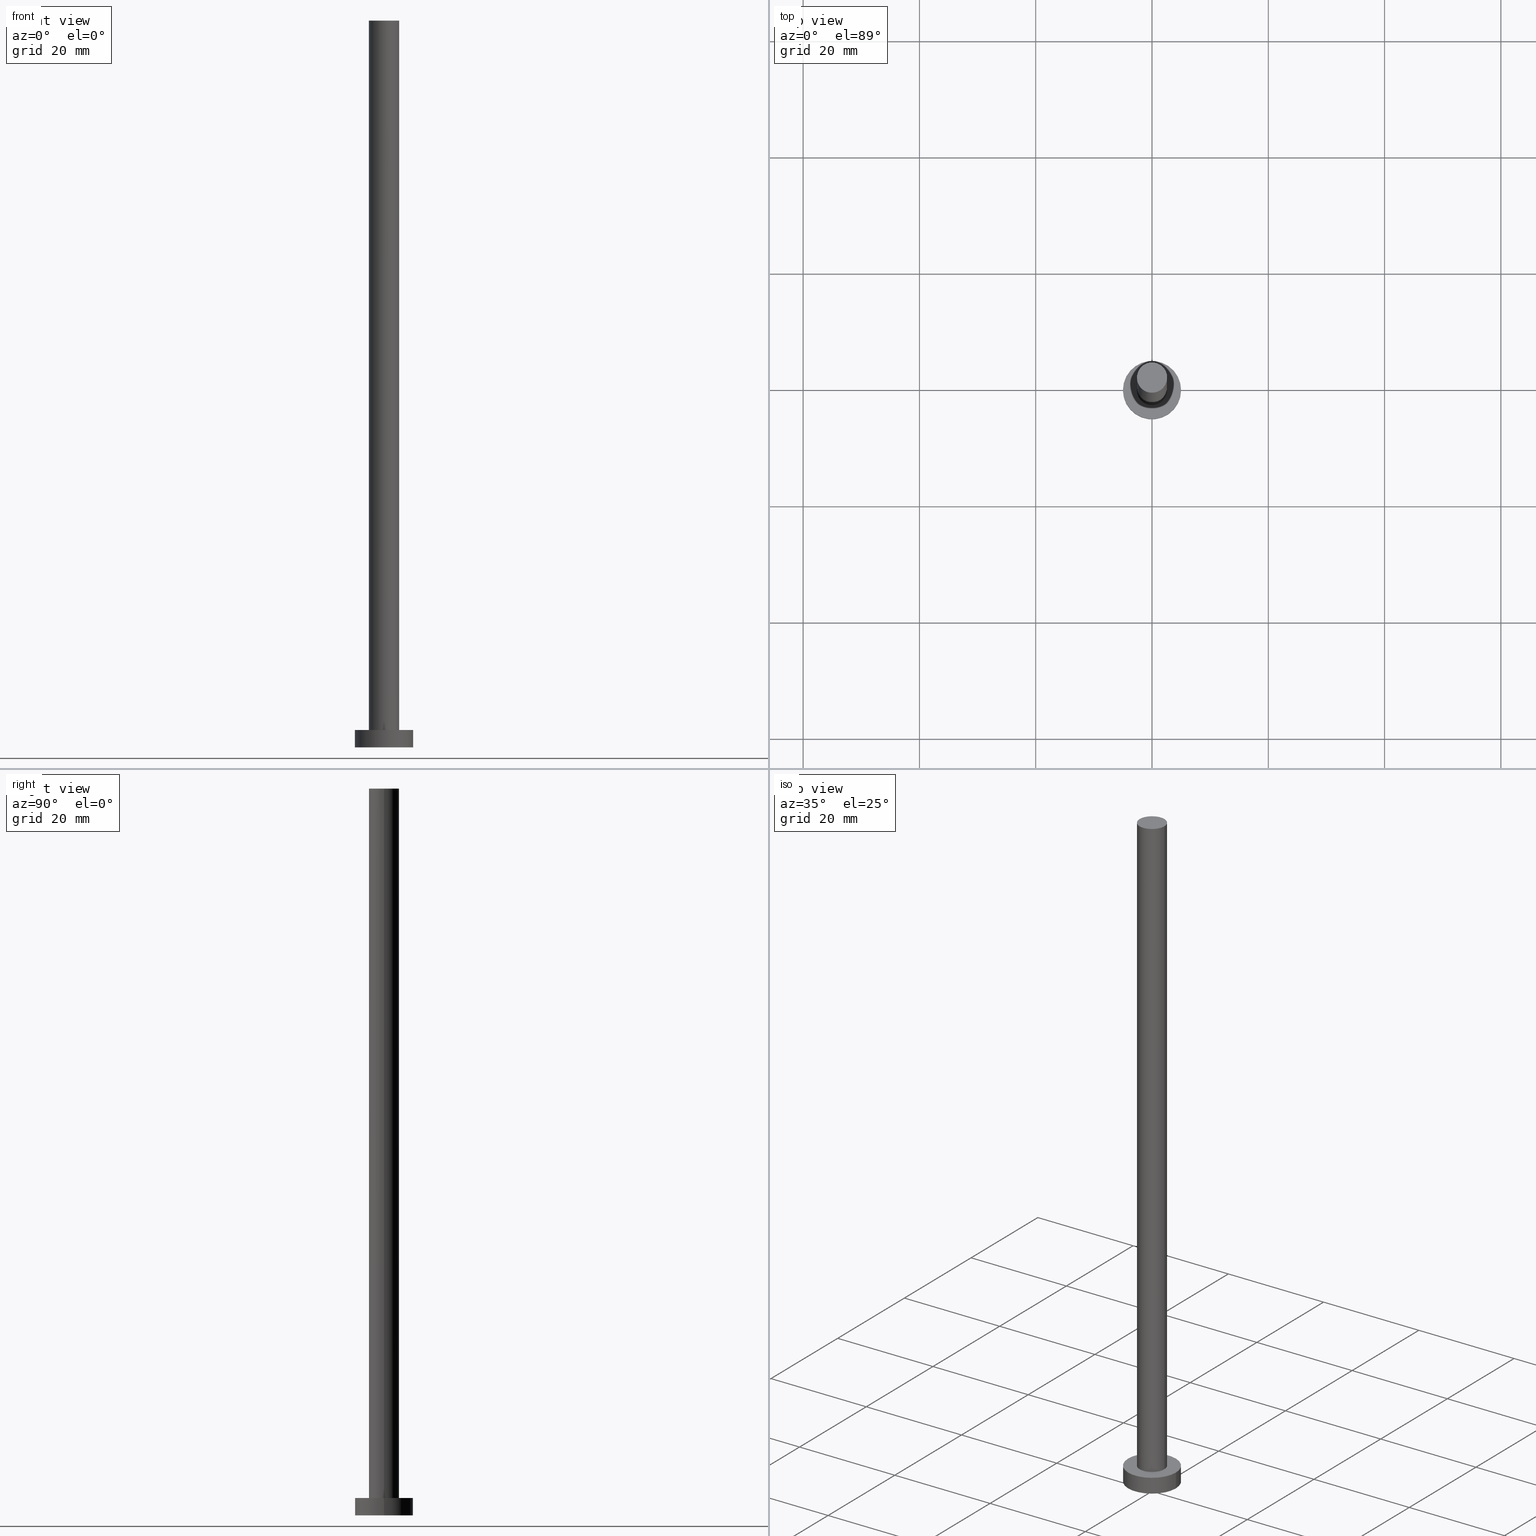
[diagram: canonical four-view strip — front | top / right | iso, engineering-drawing reading convention]
A machine part, canonical four-view strip (front | top / right | iso — engineering-drawing reading convention). The complete STEP part file that produces these views, byte-faithful:
ISO-10303-21;
HEADER;
FILE_DESCRIPTION (( 'STEP AP203' ),
    '1' );
FILE_NAME ('be71.STEP',
    '2023-02-12T11:50:10',
    ( '' ),
    ( '' ),
    'SwSTEP 2.0',
    'SolidWorks 2019',
    '' );
FILE_SCHEMA (( 'CONFIG_CONTROL_DESIGN' ));
ENDSEC;

DATA;
#1 = COORDINATED_UNIVERSAL_TIME_OFFSET ( 1, 0, .AHEAD. ) ;
#2 = CC_DESIGN_PERSON_AND_ORGANIZATION_ASSIGNMENT ( #33, #235, ( #50 ) ) ;
#3 = DATE_AND_TIME ( #150, #176 ) ;
#4 = DIRECTION ( 'NONE',  ( -1.000000000000000000, 0.000000000000000000, 0.000000000000000000 ) ) ;
#5 = PERSON_AND_ORGANIZATION_ROLE ( 'creator' ) ;
#6 = SECURITY_CLASSIFICATION ( '', '', #223 ) ;
#7 = ORIENTED_EDGE ( 'NONE', *, *, #31, .T. ) ;
#8 = APPROVAL_ROLE ( '' ) ;
#9 = DIRECTION ( 'NONE',  ( 0.000000000000000000, 0.000000000000000000, 1.000000000000000000 ) ) ;
#10 = ORIENTED_EDGE ( 'NONE', *, *, #112, .F. ) ;
#11 = CIRCLE ( 'NONE', #184, 5.000000000000000000 ) ;
#12 = AXIS2_PLACEMENT_3D ( 'NONE', #76, #155, #241 ) ;
#13 = ORIENTED_EDGE ( 'NONE', *, *, #125, .F. ) ;
#14 = VERTEX_POINT ( 'NONE', #81 ) ;
#15 = EDGE_LOOP ( 'NONE', ( #140, #178 ) ) ;
#16 = CC_DESIGN_APPROVAL ( #226, ( #52 ) ) ;
#17 = VECTOR ( 'NONE', #118, 1000.000000000000000 ) ;
#18 = APPROVAL_PERSON_ORGANIZATION ( #180, #226, #8 ) ;
#19 = CYLINDRICAL_SURFACE ( 'NONE', #249, 5.000000000000000000 ) ;
#20 = CALENDAR_DATE ( 2023, 12, 2 ) ;
#21 = PRODUCT_RELATED_PRODUCT_CATEGORY ( 'detail', '', ( #50 ) ) ;
#22 = DIRECTION ( 'NONE',  ( 0.000000000000000000, 0.000000000000000000, 1.000000000000000000 ) ) ;
#23 = VERTEX_POINT ( 'NONE', #224 ) ;
#24 = VERTEX_POINT ( 'NONE', #225 ) ;
#25 = CYLINDRICAL_SURFACE ( 'NONE', #12, 2.600000000000000089 ) ;
#26 = MANIFOLD_SOLID_BREP ( 'P�idat vysunut�m3', #188 ) ;
#27 = EDGE_LOOP ( 'NONE', ( #13, #57 ) ) ;
#28 = EDGE_CURVE ( 'NONE', #24, #14, #30, .T. ) ;
#29 = ORIENTED_EDGE ( 'NONE', *, *, #233, .F. ) ;
#30 = LINE ( 'NONE', #122, #208 ) ;
#31 = EDGE_CURVE ( 'NONE', #221, #209, #177, .T. ) ;
#32 = AXIS2_PLACEMENT_3D ( 'NONE', #206, #250, #67 ) ;
#33 = PERSON_AND_ORGANIZATION ( #189, #229 ) ;
#34 = ADVANCED_FACE ( 'NONE', ( #231 ), #119, .T. ) ;
#35 = DIRECTION ( 'NONE',  ( 1.000000000000000000, 0.000000000000000000, 0.000000000000000000 ) ) ;
#36 = ORIENTED_EDGE ( 'NONE', *, *, #94, .F. ) ;
#37 = ADVANCED_BREP_SHAPE_REPRESENTATION ( 'be71', ( #26, #151 ), #114 ) ;
#38 = PERSON_AND_ORGANIZATION ( #189, #229 ) ;
#39 = CALENDAR_DATE ( 2023, 12, 2 ) ;
#40 = DIRECTION ( 'NONE',  ( 1.000000000000000000, 0.000000000000000000, 0.000000000000000000 ) ) ;
#41 = APPROVAL_STATUS ( 'not_yet_approved' ) ;
#42 = EDGE_CURVE ( 'NONE', #107, #23, #162, .T. ) ;
#43 = DIRECTION ( 'NONE',  ( 0.000000000000000000, 0.000000000000000000, 1.000000000000000000 ) ) ;
#44 = AXIS2_PLACEMENT_3D ( 'NONE', #74, #175, #40 ) ;
#45 = PLANE ( 'NONE',  #202 ) ;
#46 = DIRECTION ( 'NONE',  ( 1.000000000000000000, 0.000000000000000000, 0.000000000000000000 ) ) ;
#47 = LINE ( 'NONE', #133, #17 ) ;
#48 = ORIENTED_EDGE ( 'NONE', *, *, #100, .T. ) ;
#49 = AXIS2_PLACEMENT_3D ( 'NONE', #157, #43, #46 ) ;
#50 = PRODUCT ( 'be71', 'be71', '', ( #234 ) ) ;
#51 = DIRECTION ( 'NONE',  ( 1.000000000000000000, 0.000000000000000000, 0.000000000000000000 ) ) ;
#52 = PRODUCT_DEFINITION_FORMATION_WITH_SPECIFIED_SOURCE ( 'LIBOVOLN�', '', #50, .NOT_KNOWN. ) ;
#53 = APPLICATION_PROTOCOL_DEFINITION ( 'international standard', 'config_control_design', 1994, #243 ) ;
#54 = ADVANCED_FACE ( 'NONE', ( #65 ), #251, .T. ) ;
#55 = CARTESIAN_POINT ( 'NONE',  ( 0.000000000000000000, 0.000000000000000000, 125.0000000000000000 ) ) ;
#56 = CIRCLE ( 'NONE', #44, 5.000000000000000000 ) ;
#57 = ORIENTED_EDGE ( 'NONE', *, *, #194, .F. ) ;
#58 = DIRECTION ( 'NONE',  ( 1.000000000000000000, 0.000000000000000000, 0.000000000000000000 ) ) ;
#59 = PERSON_AND_ORGANIZATION ( #189, #229 ) ;
#60 = FACE_OUTER_BOUND ( 'NONE', #93, .T. ) ;
#61 = COORDINATED_UNIVERSAL_TIME_OFFSET ( 1, 0, .AHEAD. ) ;
#62 = ADVANCED_FACE ( 'NONE', ( #166 ), #253, .F. ) ;
#63 = DIRECTION ( 'NONE',  ( -1.000000000000000000, 0.000000000000000000, 0.000000000000000000 ) ) ;
#64 = APPROVAL_PERSON_ORGANIZATION ( #170, #210, #104 ) ;
#65 = FACE_OUTER_BOUND ( 'NONE', #15, .T. ) ;
#66 = EDGE_CURVE ( 'NONE', #132, #24, #148, .T. ) ;
#67 = DIRECTION ( 'NONE',  ( 1.000000000000000000, 0.000000000000000000, 0.000000000000000000 ) ) ;
#68 = CARTESIAN_POINT ( 'NONE',  ( 0.000000000000000000, 0.000000000000000000, 0.000000000000000000 ) ) ;
#69 = CARTESIAN_POINT ( 'NONE',  ( 0.000000000000000000, 0.000000000000000000, 3.000000000000000000 ) ) ;
#70 = APPROVAL_PERSON_ORGANIZATION ( #242, #130, #75 ) ;
#71 = AXIS2_PLACEMENT_3D ( 'NONE', #182, #143, #98 ) ;
#72 = CC_DESIGN_PERSON_AND_ORGANIZATION_ASSIGNMENT ( #59, #77, ( #6 ) ) ;
#73 = CC_DESIGN_APPROVAL ( #130, ( #6 ) ) ;
#74 = CARTESIAN_POINT ( 'NONE',  ( 0.000000000000000000, 0.000000000000000000, 0.000000000000000000 ) ) ;
#75 = APPROVAL_ROLE ( '' ) ;
#76 = CARTESIAN_POINT ( 'NONE',  ( 0.000000000000000000, 0.000000000000000000, 125.0000000000000000 ) ) ;
#77 = PERSON_AND_ORGANIZATION_ROLE ( 'classification_officer' ) ;
#78 = ORIENTED_EDGE ( 'NONE', *, *, #112, .T. ) ;
#79 = ORIENTED_EDGE ( 'NONE', *, *, #100, .F. ) ;
#80 = AXIS2_PLACEMENT_3D ( 'NONE', #228, #95, #51 ) ;
#81 = CARTESIAN_POINT ( 'NONE',  ( 5.000000000000000000, 6.123233995736766282E-16, 0.000000000000000000 ) ) ;
#82 = DIRECTION ( 'NONE',  ( -0.000000000000000000, -0.000000000000000000, -1.000000000000000000 ) ) ;
#83 = DIRECTION ( 'NONE',  ( 0.000000000000000000, 0.000000000000000000, 1.000000000000000000 ) ) ;
#84 =( NAMED_UNIT ( * ) SI_UNIT ( $, .STERADIAN. ) SOLID_ANGLE_UNIT ( ) );
#85 = AXIS2_PLACEMENT_3D ( 'NONE', #144, #121, #63 ) ;
#86 = CARTESIAN_POINT ( 'NONE',  ( -5.000000000000000000, 0.000000000000000000, 3.000000000000000000 ) ) ;
#87 = LINE ( 'NONE', #173, #215 ) ;
#88 = PERSON_AND_ORGANIZATION ( #189, #229 ) ;
#89 = FACE_OUTER_BOUND ( 'NONE', #115, .T. ) ;
#90 = AXIS2_PLACEMENT_3D ( 'NONE', #149, #22, #58 ) ;
#91 = ORIENTED_EDGE ( 'NONE', *, *, #233, .T. ) ;
#92 = CIRCLE ( 'NONE', #90, 5.000000000000000000 ) ;
#93 = EDGE_LOOP ( 'NONE', ( #245, #227, #48, #185 ) ) ;
#94 = EDGE_CURVE ( 'NONE', #24, #132, #11, .T. ) ;
#95 = DIRECTION ( 'NONE',  ( 0.000000000000000000, 0.000000000000000000, 1.000000000000000000 ) ) ;
#96 = ORIENTED_EDGE ( 'NONE', *, *, #42, .F. ) ;
#97 = APPLICATION_PROTOCOL_DEFINITION ( 'international standard', 'config_control_design', 1994, #127 ) ;
#98 = DIRECTION ( 'NONE',  ( 1.000000000000000000, 0.000000000000000000, -0.000000000000000000 ) ) ;
#99 = DIRECTION ( 'NONE',  ( 1.000000000000000000, 0.000000000000000000, -0.000000000000000000 ) ) ;
#100 = EDGE_CURVE ( 'NONE', #132, #195, #129, .T. ) ;
#101 =( LENGTH_UNIT ( ) NAMED_UNIT ( * ) SI_UNIT ( .MILLI., .METRE. ) );
#102 = CARTESIAN_POINT ( 'NONE',  ( -5.000000000000000000, 0.000000000000000000, 3.000000000000000000 ) ) ;
#103 = CC_DESIGN_PERSON_AND_ORGANIZATION_ASSIGNMENT ( #38, #193, ( #200 ) ) ;
#104 = APPROVAL_ROLE ( '' ) ;
#105 = DIRECTION ( 'NONE',  ( 1.000000000000000000, 0.000000000000000000, 0.000000000000000000 ) ) ;
#106 = CARTESIAN_POINT ( 'NONE',  ( 0.000000000000000000, 0.000000000000000000, 125.0000000000000000 ) ) ;
#107 = VERTEX_POINT ( 'NONE', #161 ) ;
#108 = AXIS2_PLACEMENT_3D ( 'NONE', #68, #145, #99 ) ;
#109 = CARTESIAN_POINT ( 'NONE',  ( -5.000000000000000000, 0.000000000000000000, 0.000000000000000000 ) ) ;
#110 = CC_DESIGN_SECURITY_CLASSIFICATION ( #6, ( #52 ) ) ;
#111 = APPROVAL_DATE_TIME ( #134, #226 ) ;
#112 = EDGE_CURVE ( 'NONE', #107, #221, #87, .T. ) ;
#113 = ORIENTED_EDGE ( 'NONE', *, *, #194, .T. ) ;
#114 =( GEOMETRIC_REPRESENTATION_CONTEXT ( 3 ) GLOBAL_UNCERTAINTY_ASSIGNED_CONTEXT ( ( #147 ) ) GLOBAL_UNIT_ASSIGNED_CONTEXT ( ( #101, #124, #84 ) ) REPRESENTATION_CONTEXT ( 'NONE', 'WORKASPACE' ) );
#115 = EDGE_LOOP ( 'NONE', ( #164, #96, #78, #7 ) ) ;
#116 = CC_DESIGN_PERSON_AND_ORGANIZATION_ASSIGNMENT ( #117, #222, ( #52 ) ) ;
#117 = PERSON_AND_ORGANIZATION ( #189, #229 ) ;
#118 = DIRECTION ( 'NONE',  ( -0.000000000000000000, -0.000000000000000000, -1.000000000000000000 ) ) ;
#119 = CYLINDRICAL_SURFACE ( 'NONE', #85, 5.000000000000000000 ) ;
#120 = CARTESIAN_POINT ( 'NONE',  ( 0.000000000000000000, 0.000000000000000000, 3.000000000000000000 ) ) ;
#121 = DIRECTION ( 'NONE',  ( -0.000000000000000000, -0.000000000000000000, -1.000000000000000000 ) ) ;
#122 = CARTESIAN_POINT ( 'NONE',  ( 5.000000000000000000, 6.123233995736766282E-16, 3.000000000000000000 ) ) ;
#123 = LOCAL_TIME ( 12, 50, 10.00000000000000000, #152 ) ;
#124 =( NAMED_UNIT ( * ) PLANE_ANGLE_UNIT ( ) SI_UNIT ( $, .RADIAN. ) );
#125 = EDGE_CURVE ( 'NONE', #195, #14, #92, .T. ) ;
#126 = ORIENTED_EDGE ( 'NONE', *, *, #153, .T. ) ;
#127 = APPLICATION_CONTEXT ( 'configuration controlled 3d designs of mechanical parts and assemblies' ) ;
#128 = DIRECTION ( 'NONE',  ( 1.000000000000000000, 0.000000000000000000, 0.000000000000000000 ) ) ;
#129 = LINE ( 'NONE', #102, #191 ) ;
#130 = APPROVAL ( #41, 'NEUR�EN�' ) ;
#131 = FACE_BOUND ( 'NONE', #136, .T. ) ;
#132 = VERTEX_POINT ( 'NONE', #86 ) ;
#133 = CARTESIAN_POINT ( 'NONE',  ( 2.600000000000000089, 3.184081677783117698E-16, 125.0000000000000000 ) ) ;
#134 = DATE_AND_TIME ( #20, #214 ) ;
#135 = DIRECTION ( 'NONE',  ( -0.000000000000000000, -0.000000000000000000, -1.000000000000000000 ) ) ;
#136 = EDGE_LOOP ( 'NONE', ( #204, #29 ) ) ;
#137 = CC_DESIGN_PERSON_AND_ORGANIZATION_ASSIGNMENT ( #88, #5, ( #52 ) ) ;
#138 = COORDINATED_UNIVERSAL_TIME_OFFSET ( 1, 0, .AHEAD. ) ;
#139 = DATE_AND_TIME ( #246, #190 ) ;
#140 = ORIENTED_EDGE ( 'NONE', *, *, #42, .T. ) ;
#141 = CARTESIAN_POINT ( 'NONE',  ( 0.000000000000000000, 0.000000000000000000, 3.000000000000000000 ) ) ;
#142 = DIRECTION ( 'NONE',  ( 0.000000000000000000, 0.000000000000000000, 1.000000000000000000 ) ) ;
#143 = DIRECTION ( 'NONE',  ( 0.000000000000000000, 0.000000000000000000, 1.000000000000000000 ) ) ;
#144 = CARTESIAN_POINT ( 'NONE',  ( 0.000000000000000000, 0.000000000000000000, 3.000000000000000000 ) ) ;
#145 = DIRECTION ( 'NONE',  ( 0.000000000000000000, 0.000000000000000000, 1.000000000000000000 ) ) ;
#146 = AXIS2_PLACEMENT_3D ( 'NONE', #55, #142, #219 ) ;
#147 = UNCERTAINTY_MEASURE_WITH_UNIT (LENGTH_MEASURE( 1.000000000000000082E-05 ), #101, 'distance_accuracy_value', 'NONE');
#148 = CIRCLE ( 'NONE', #49, 5.000000000000000000 ) ;
#149 = CARTESIAN_POINT ( 'NONE',  ( 0.000000000000000000, 0.000000000000000000, 0.000000000000000000 ) ) ;
#150 = CALENDAR_DATE ( 2023, 12, 2 ) ;
#151 = AXIS2_PLACEMENT_3D ( 'NONE', #254, #255, #105 ) ;
#152 = COORDINATED_UNIVERSAL_TIME_OFFSET ( 1, 0, .AHEAD. ) ;
#153 = EDGE_CURVE ( 'NONE', #23, #209, #47, .T. ) ;
#154 = COORDINATED_UNIVERSAL_TIME_OFFSET ( 1, 0, .AHEAD. ) ;
#155 = DIRECTION ( 'NONE',  ( -0.000000000000000000, -0.000000000000000000, -1.000000000000000000 ) ) ;
#156 = DATE_TIME_ROLE ( 'creation_date' ) ;
#157 = CARTESIAN_POINT ( 'NONE',  ( 0.000000000000000000, 0.000000000000000000, 3.000000000000000000 ) ) ;
#158 = DATE_AND_TIME ( #212, #123 ) ;
#159 = ADVANCED_FACE ( 'NONE', ( #60 ), #19, .T. ) ;
#160 = EDGE_LOOP ( 'NONE', ( #179, #247 ) ) ;
#161 = CARTESIAN_POINT ( 'NONE',  ( -2.600000000000000089, 0.000000000000000000, 125.0000000000000000 ) ) ;
#162 = CIRCLE ( 'NONE', #80, 2.600000000000000089 ) ;
#163 = ORIENTED_EDGE ( 'NONE', *, *, #28, .T. ) ;
#164 = ORIENTED_EDGE ( 'NONE', *, *, #153, .F. ) ;
#165 = ADVANCED_FACE ( 'NONE', ( #236 ), #220, .T. ) ;
#166 = FACE_OUTER_BOUND ( 'NONE', #27, .T. ) ;
#167 = CIRCLE ( 'NONE', #146, 2.600000000000000089 ) ;
#168 = CC_DESIGN_DATE_AND_TIME_ASSIGNMENT ( #158, #156, ( #200 ) ) ;
#169 = DIRECTION ( 'NONE',  ( 1.000000000000000000, 0.000000000000000000, -0.000000000000000000 ) ) ;
#170 = PERSON_AND_ORGANIZATION ( #189, #229 ) ;
#171 = CIRCLE ( 'NONE', #237, 2.600000000000000089 ) ;
#172 = CC_DESIGN_DATE_AND_TIME_ASSIGNMENT ( #196, #174, ( #6 ) ) ;
#173 = CARTESIAN_POINT ( 'NONE',  ( -2.600000000000000089, 0.000000000000000000, 125.0000000000000000 ) ) ;
#174 = DATE_TIME_ROLE ( 'classification_date' ) ;
#175 = DIRECTION ( 'NONE',  ( 0.000000000000000000, 0.000000000000000000, 1.000000000000000000 ) ) ;
#176 = LOCAL_TIME ( 12, 50, 10.00000000000000000, #1 ) ;
#177 = CIRCLE ( 'NONE', #32, 2.600000000000000089 ) ;
#178 = ORIENTED_EDGE ( 'NONE', *, *, #183, .T. ) ;
#179 = ORIENTED_EDGE ( 'NONE', *, *, #66, .T. ) ;
#180 = PERSON_AND_ORGANIZATION ( #189, #229 ) ;
#181 = CARTESIAN_POINT ( 'NONE',  ( 0.000000000000000000, 0.000000000000000000, 3.000000000000000000 ) ) ;
#182 = CARTESIAN_POINT ( 'NONE',  ( 0.000000000000000000, 0.000000000000000000, 125.0000000000000000 ) ) ;
#183 = EDGE_CURVE ( 'NONE', #23, #107, #167, .T. ) ;
#184 = AXIS2_PLACEMENT_3D ( 'NONE', #141, #207, #35 ) ;
#185 = ORIENTED_EDGE ( 'NONE', *, *, #125, .T. ) ;
#186 = EDGE_LOOP ( 'NONE', ( #187, #126, #91, #10 ) ) ;
#187 = ORIENTED_EDGE ( 'NONE', *, *, #183, .F. ) ;
#188 = CLOSED_SHELL ( 'NONE', ( #165, #34, #159, #217, #62, #213, #54 ) ) ;
#189 = PERSON ( 'NEUR�EN�', 'NEUR�EN�', 'NEUR�EN�', ('NEUR�EN�'), ('NEUR�EN�'), ('NEUR�EN�') ) ;
#190 = LOCAL_TIME ( 12, 50, 10.00000000000000000, #154 ) ;
#191 = VECTOR ( 'NONE', #238, 1000.000000000000000 ) ;
#192 = APPROVAL_STATUS ( 'not_yet_approved' ) ;
#193 = PERSON_AND_ORGANIZATION_ROLE ( 'creator' ) ;
#194 = EDGE_CURVE ( 'NONE', #14, #195, #56, .T. ) ;
#195 = VERTEX_POINT ( 'NONE', #109 ) ;
#196 = DATE_AND_TIME ( #39, #211 ) ;
#197 = AXIS2_PLACEMENT_3D ( 'NONE', #106, #239, #4 ) ;
#198 = CARTESIAN_POINT ( 'NONE',  ( 2.600000000000000089, 3.184081677783117698E-16, 3.000000000000000000 ) ) ;
#199 = APPROVAL_DATE_TIME ( #139, #130 ) ;
#200 = PRODUCT_DEFINITION ( 'NEZN�M�', '', #52, #230 ) ;
#201 = EDGE_LOOP ( 'NONE', ( #36, #163, #113, #79 ) ) ;
#202 = AXIS2_PLACEMENT_3D ( 'NONE', #181, #9, #169 ) ;
#203 = PRODUCT_DEFINITION_SHAPE ( 'NONE', 'NONE',  #200 ) ;
#204 = ORIENTED_EDGE ( 'NONE', *, *, #31, .F. ) ;
#205 = DIRECTION ( 'NONE',  ( -1.000000000000000000, 0.000000000000000000, 0.000000000000000000 ) ) ;
#206 = CARTESIAN_POINT ( 'NONE',  ( 0.000000000000000000, 0.000000000000000000, 3.000000000000000000 ) ) ;
#207 = DIRECTION ( 'NONE',  ( 0.000000000000000000, 0.000000000000000000, 1.000000000000000000 ) ) ;
#208 = VECTOR ( 'NONE', #82, 1000.000000000000000 ) ;
#209 = VERTEX_POINT ( 'NONE', #198 ) ;
#210 = APPROVAL ( #192, 'NEUR�EN�' ) ;
#211 = LOCAL_TIME ( 12, 50, 10.00000000000000000, #61 ) ;
#212 = CALENDAR_DATE ( 2023, 12, 2 ) ;
#213 = ADVANCED_FACE ( 'NONE', ( #89 ), #25, .T. ) ;
#214 = LOCAL_TIME ( 12, 50, 10.00000000000000000, #138 ) ;
#215 = VECTOR ( 'NONE', #135, 1000.000000000000000 ) ;
#216 = FACE_OUTER_BOUND ( 'NONE', #160, .T. ) ;
#217 = ADVANCED_FACE ( 'NONE', ( #131, #216 ), #45, .T. ) ;
#218 = APPROVAL_DATE_TIME ( #3, #210 ) ;
#219 = DIRECTION ( 'NONE',  ( 1.000000000000000000, 0.000000000000000000, 0.000000000000000000 ) ) ;
#220 = CYLINDRICAL_SURFACE ( 'NONE', #197, 2.600000000000000089 ) ;
#221 = VERTEX_POINT ( 'NONE', #252 ) ;
#222 = PERSON_AND_ORGANIZATION_ROLE ( 'design_supplier' ) ;
#223 = SECURITY_CLASSIFICATION_LEVEL ( 'unclassified' ) ;
#224 = CARTESIAN_POINT ( 'NONE',  ( 2.600000000000000089, 3.184081677783117698E-16, 125.0000000000000000 ) ) ;
#225 = CARTESIAN_POINT ( 'NONE',  ( 5.000000000000000000, 6.123233995736766282E-16, 3.000000000000000000 ) ) ;
#226 = APPROVAL ( #244, 'NEUR�EN�' ) ;
#227 = ORIENTED_EDGE ( 'NONE', *, *, #66, .F. ) ;
#228 = CARTESIAN_POINT ( 'NONE',  ( 0.000000000000000000, 0.000000000000000000, 125.0000000000000000 ) ) ;
#229 = ORGANIZATION ( 'NEUR�EN�', 'NEUR�EN�', '' ) ;
#230 = DESIGN_CONTEXT ( 'detailed design', #243, 'design' ) ;
#231 = FACE_OUTER_BOUND ( 'NONE', #201, .T. ) ;
#232 = CC_DESIGN_APPROVAL ( #210, ( #200 ) ) ;
#233 = EDGE_CURVE ( 'NONE', #209, #221, #171, .T. ) ;
#234 = MECHANICAL_CONTEXT ( 'NONE', #127, 'mechanical' ) ;
#235 = PERSON_AND_ORGANIZATION_ROLE ( 'design_owner' ) ;
#236 = FACE_OUTER_BOUND ( 'NONE', #186, .T. ) ;
#237 = AXIS2_PLACEMENT_3D ( 'NONE', #69, #83, #128 ) ;
#238 = DIRECTION ( 'NONE',  ( -0.000000000000000000, -0.000000000000000000, -1.000000000000000000 ) ) ;
#239 = DIRECTION ( 'NONE',  ( -0.000000000000000000, -0.000000000000000000, -1.000000000000000000 ) ) ;
#240 = SHAPE_DEFINITION_REPRESENTATION ( #203, #37 ) ;
#241 = DIRECTION ( 'NONE',  ( -1.000000000000000000, 0.000000000000000000, 0.000000000000000000 ) ) ;
#242 = PERSON_AND_ORGANIZATION ( #189, #229 ) ;
#243 = APPLICATION_CONTEXT ( 'configuration controlled 3d designs of mechanical parts and assemblies' ) ;
#244 = APPROVAL_STATUS ( 'not_yet_approved' ) ;
#245 = ORIENTED_EDGE ( 'NONE', *, *, #28, .F. ) ;
#246 = CALENDAR_DATE ( 2023, 12, 2 ) ;
#247 = ORIENTED_EDGE ( 'NONE', *, *, #94, .T. ) ;
#248 = DIRECTION ( 'NONE',  ( -0.000000000000000000, -0.000000000000000000, -1.000000000000000000 ) ) ;
#249 = AXIS2_PLACEMENT_3D ( 'NONE', #120, #248, #205 ) ;
#250 = DIRECTION ( 'NONE',  ( 0.000000000000000000, 0.000000000000000000, 1.000000000000000000 ) ) ;
#251 = PLANE ( 'NONE',  #71 ) ;
#252 = CARTESIAN_POINT ( 'NONE',  ( -2.600000000000000089, 0.000000000000000000, 3.000000000000000000 ) ) ;
#253 = PLANE ( 'NONE',  #108 ) ;
#254 = CARTESIAN_POINT ( 'NONE',  ( 0.000000000000000000, 0.000000000000000000, 0.000000000000000000 ) ) ;
#255 = DIRECTION ( 'NONE',  ( 0.000000000000000000, 0.000000000000000000, 1.000000000000000000 ) ) ;
ENDSEC;
END-ISO-10303-21;
